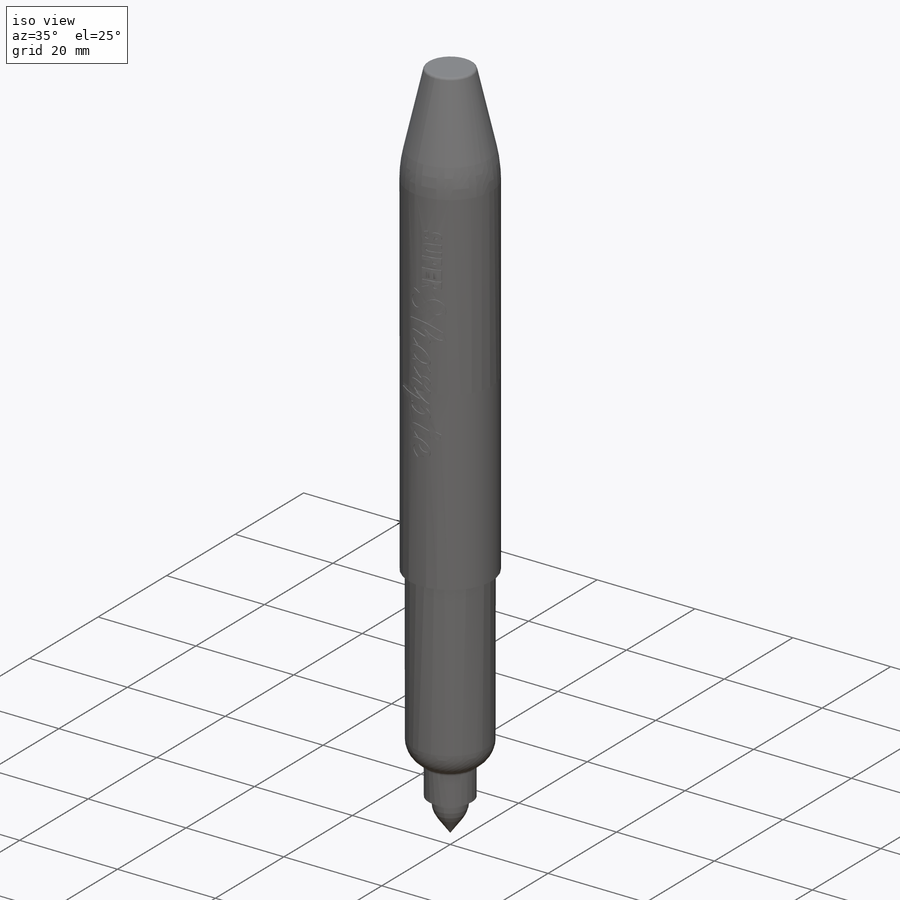
[diagram: iso view]
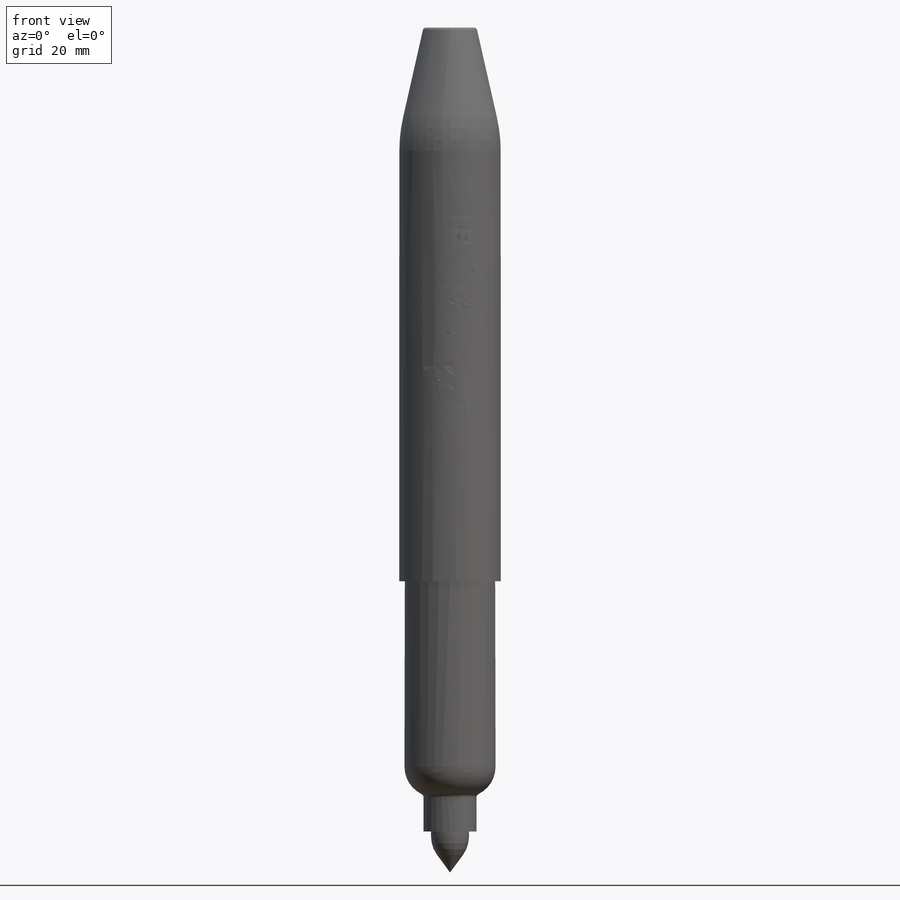
[diagram: front view]
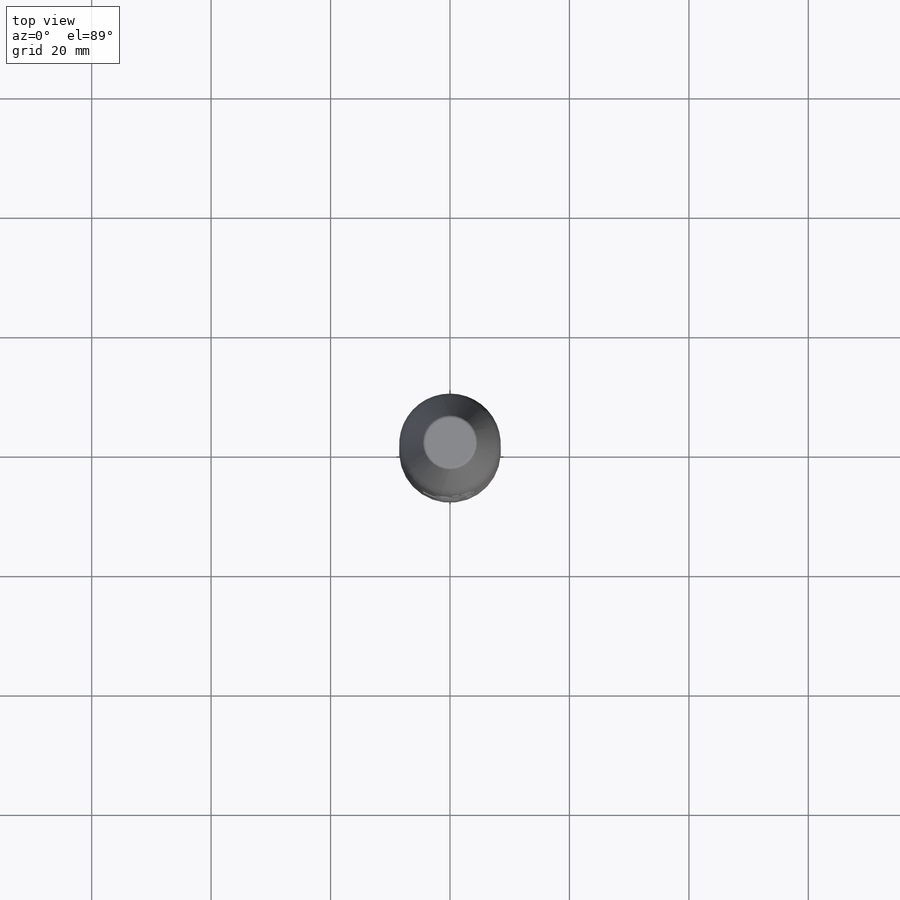
[diagram: top view]
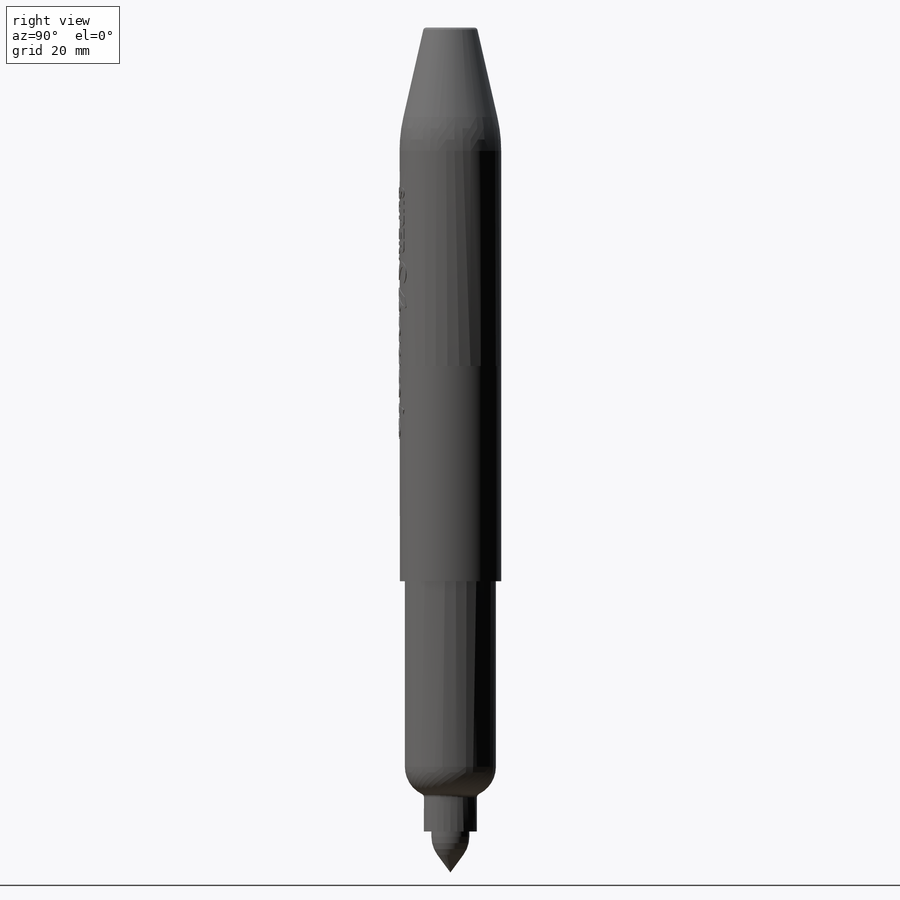
[diagram: right view]
SOLIDWORKS PART (.sldprt)
format: sldprt  version: not decoded by parser v0  size: 1,146,880 bytes
history: native  units: mm
features: fillet x5, sketch x2, material x1, revolve x1, plane x1 (+13 scaffold rows collapsed)
feature tree (23):
  scaffold x13  (default folders/planes/origin — collapsed)
  material  "Chrome Stainless Steel"
  sketch  "Sketch1"  dims[c1.D1=8.89mm c1.D2=10.922mm c1.D3=17.018mm c1.D4=15.24mm c1.D5=10.414mm c1.D6=8.89mm c1.D7=6.35mm c1.D8=74.93mm c1.D9=92.71mm c1.D10=35.56mm c1.D11=41.91mm c1.D12=44.45mm c1.D13=141.478mm c1.D14=123.952mm c2.D2=15.748mm c2.D14=141.478mm c2.D5=35.56mm c3.D2=74.93mm]
  revolve  "Revolve1"  Angle=360deg
  fillet  "Fillet1"  Radius=0.508mm
  fillet  "Fillet2"  Radius=0.635mm
  fillet  "Fillet3"  Radius=5.08mm
  fillet  "Fillet5"  Radius=25.4mm
  fillet  "Fillet6"  Radius=5.08mm
  plane  "Plane1"  Offset=25.4mm
  sketch  "Sketch3"  dims[c1.D1=~50.511309mm c2.D1=0.127mm]
decode coverage: 8 of 8 modeling features carry decoded parameters
note: ~ marks probable driven/reference dimensions
note: suppression state not decoded; provenance and decode notes live in map.json
